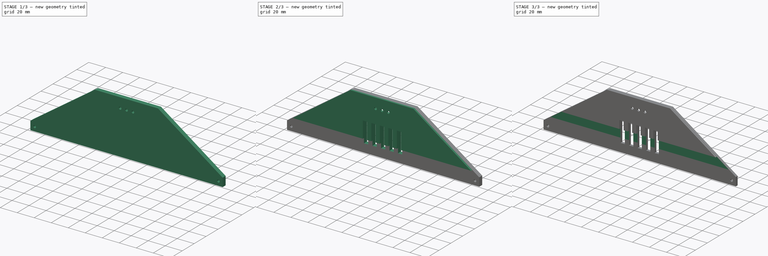
[diagram: build sequence overview — one tinted view per stage of 3, left to right]
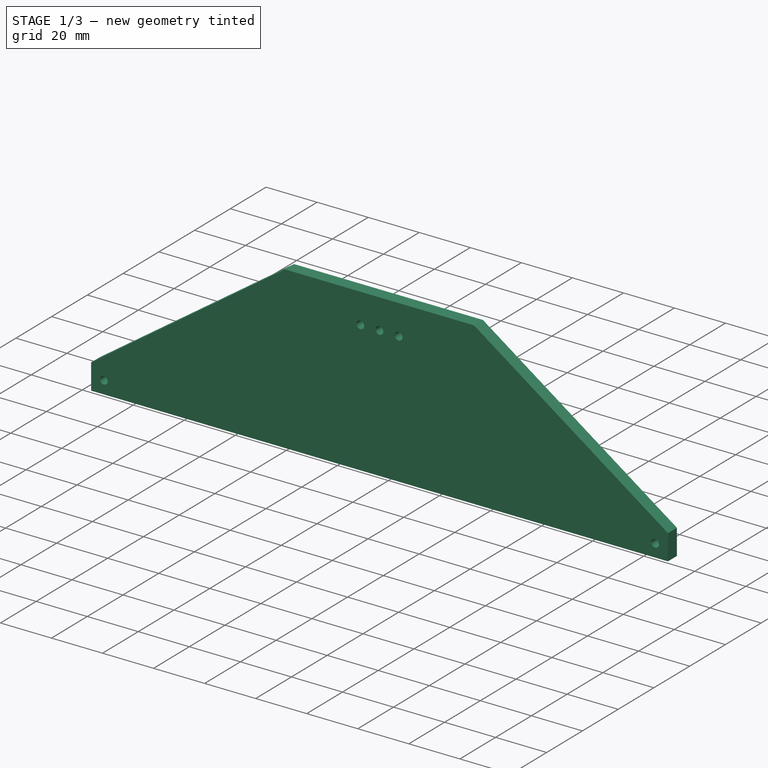
[diagram: stage 1 of 3 — iso view after this stage's code; geometry added in this stage tinted green]
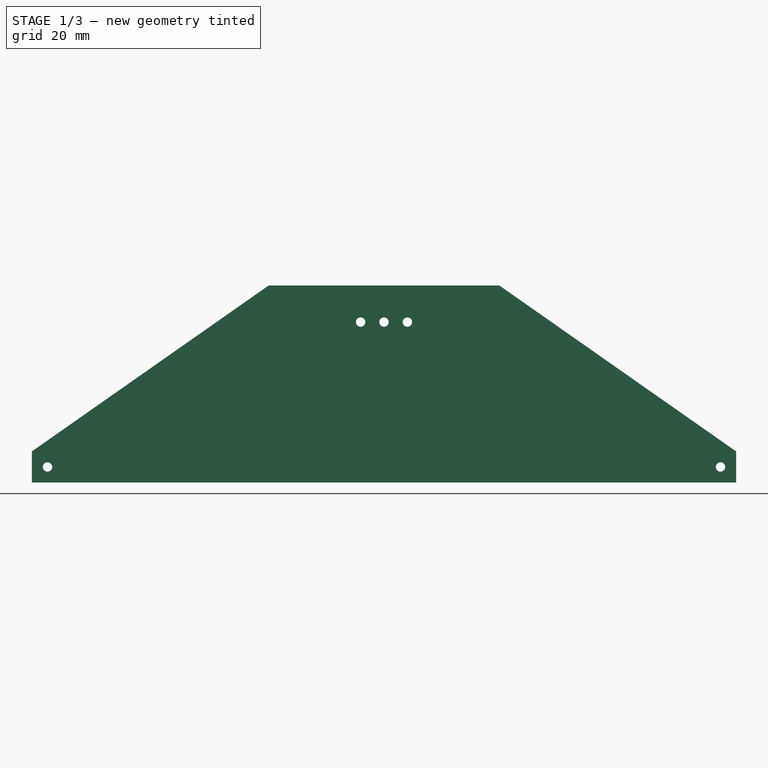
[diagram: stage 1 of 3 — front view after this stage's code; geometry added in this stage tinted green]
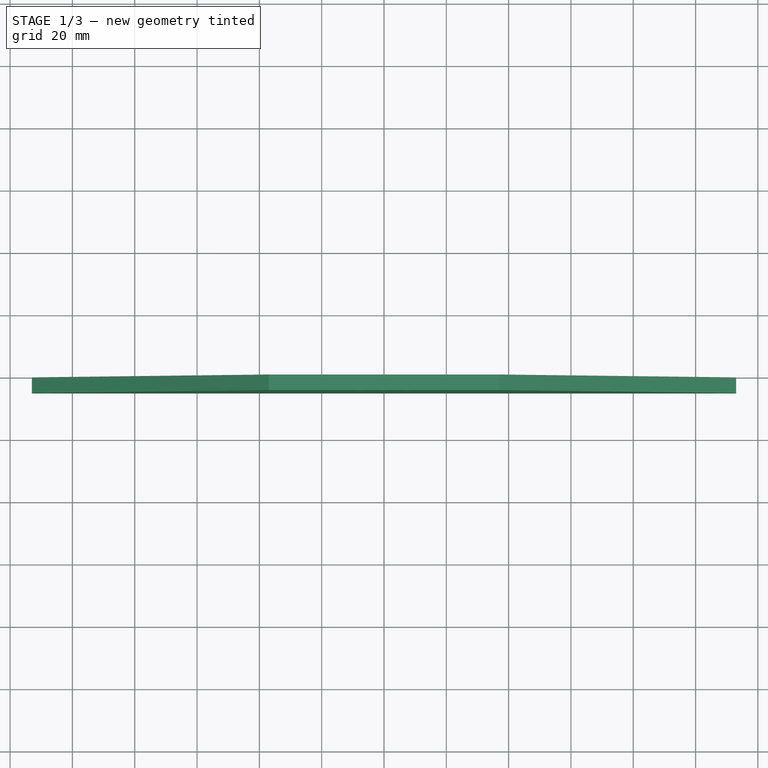
[diagram: stage 1 of 3 — top view after this stage's code; geometry added in this stage tinted green]
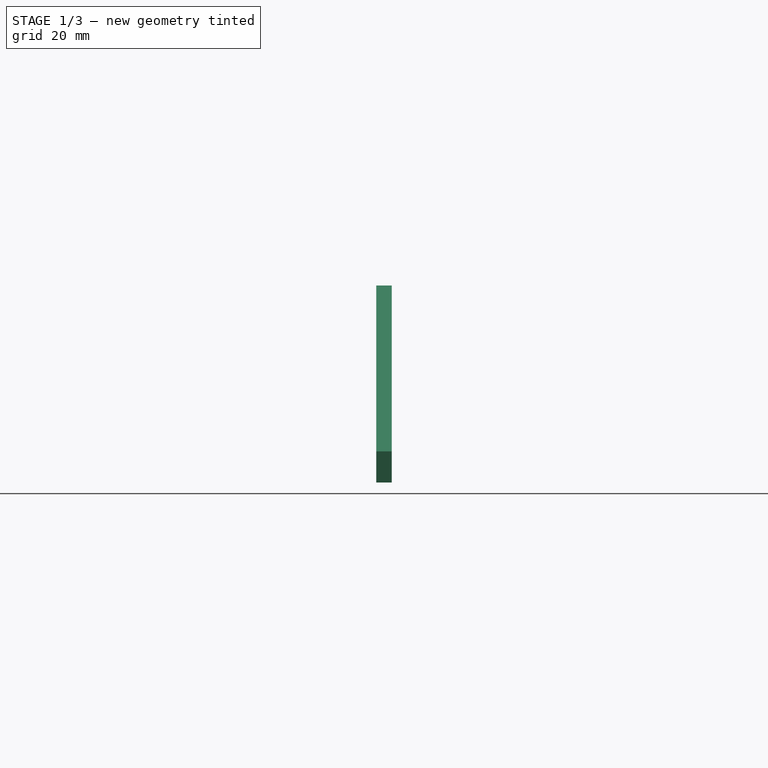
[diagram: stage 1 of 3 — right view after this stage's code; geometry added in this stage tinted green]
FCSTD DOCUMENT  (FreeCAD 0.21R33668 +26 (Git))
Label: lock_front
License: All rights reserved
LicenseURL: https://en.wikipedia.org/wiki/All_rights_reserved
objects: Sketcher::SketchObject×7, PartDesign::Pocket×5, PartDesign::Pad×2, PartDesign::Body×1
note: 22 computed .brp shape members not serialized (recipe doc carries the construction recipe); baked Part::Feature solids carry a one-line shape summary decoded from their .brp

FEATURE [Sketcher::SketchObject] Sketch
  FullyConstrained = true
  MapMode = 5
  Placement = pos=(0,0,0) rot=(1,0,0;1.5708rad)
  Support = -> [XZ_Plane]
  sketch-geometry (6):
    g0: LineSegment StartX=-37 StartY=63.25 StartZ=0 EndX=37 EndY=63.25 EndZ=0
    g1: LineSegment StartX=37 StartY=63.25 StartZ=0 EndX=113 EndY=10 EndZ=0
    g2: LineSegment StartX=113 StartY=10 StartZ=0 EndX=113 EndY=0 EndZ=0
    g3: LineSegment StartX=113 StartY=0 StartZ=0 EndX=-113 EndY=0 EndZ=0
    g4: LineSegment StartX=-113 StartY=0 StartZ=0 EndX=-113 EndY=10 EndZ=0
    g5: LineSegment StartX=-113 StartY=10 StartZ=0 EndX=-37 EndY=63.25 EndZ=0
  constraints (18):
    c: Horizontal(g0)
    c: Coincident(g0,g1)
    c: Coincident(g1,g2)
    c: PointOnObject(g2,g-1)
    c: Vertical(g2)
    c: Coincident(g2,g3)
    c: Coincident(g3,g4)
    c: Vertical(g4)
    c: Coincident(g4,g5)
    c: Coincident(g5,g0)
    c: DistanceX(g0,g0) = 74
    c: DistanceX(g-1,g0) = 37
    c: DistanceY(g2,g2) = 10
    c: DistanceY(g4,g4) = 10
    c: Horizontal(g3,g-1)
    c: DistanceX(g3,g3) = 226
    c: DistanceX(g-1,g2) = 113
    c: DistanceY(g-1,g0) = 63.25
FEATURE [PartDesign::Pad] Pad
  Direction = (0,-1,-2e-16)
  Length = 5
  Length2 = 10
  Placement = pos=(0,0,0) rot=(1,0,0;1.5708rad)
  Profile = -> Sketch
  ReferenceAxis = -> Sketch [N_Axis]
  Type = 0
FEATURE [Sketcher::SketchObject] Sketch001
  ExternalGeometry = -> [Pad]
  FullyConstrained = true
  MapMode = 5
  Placement = pos=(0,-5,-1.1e-15) rot=(1,0,0;1.5708rad)
  Support = -> [Pad]
  sketch-geometry (5):
    g0: Circle CenterX=-108 CenterY=5 CenterZ=0 NormalX=0 NormalY=0 NormalZ=1 AngleXU=0 Radius=1.5
    g1: Circle CenterX=108 CenterY=5 CenterZ=0 NormalX=0 NormalY=0 NormalZ=1 AngleXU=0 Radius=1.5
    g2: Circle CenterX=-7.5 CenterY=51.5 CenterZ=0 NormalX=0 NormalY=0 NormalZ=1 AngleXU=0 Radius=1.5
    g3: Circle CenterX=0 CenterY=51.5 CenterZ=0 NormalX=0 NormalY=0 NormalZ=1 AngleXU=0 Radius=1.5
    g4: Circle CenterX=7.5 CenterY=51.5 CenterZ=0 NormalX=0 NormalY=0 NormalZ=1 AngleXU=0 Radius=1.5
  constraints (15):
    c: Horizontal(g0,g1)
    c: Equal(g0,g1)
    c: Diameter(g1) = 3
    c: DistanceX(g1,g-4) = 5
    c: DistanceY(g1,g-4) = 5
    c: DistanceX(g-3,g0) = 5
    c: PointOnObject(g3,g-2)
    c: Horizontal(g2,g3)
    c: Horizontal(g3,g4)
    c: Equal(g2,g3)
    c: Equal(g3,g4)
    c: DistanceY(g4,g-5) = 11.75
    c: DistanceX(g3,g4) = 7.5
    c: Diameter(g4) = 3
    c: DistanceX(g2,g3) = 7.5
FEATURE [PartDesign::Pocket] Pocket
  BaseFeature = -> Pad
  Direction = (0,1,2e-16)
  Length = 5
  Length2 = 5
  Placement = pos=(0,0,0) rot=(1,0,0;1.5708rad)
  Profile = -> Sketch001
  ReferenceAxis = -> Sketch001 [N_Axis]
  Type = 1
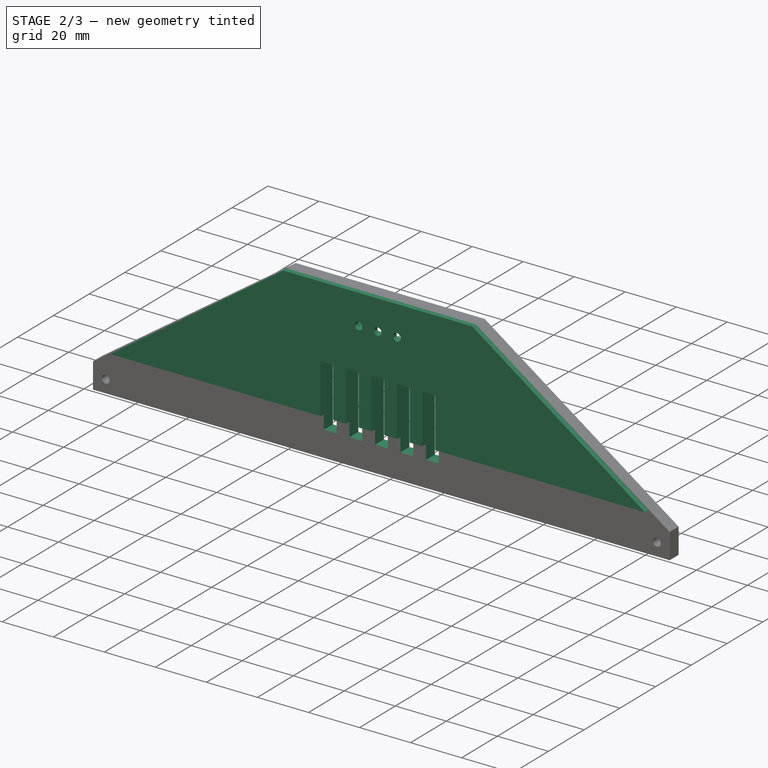
[diagram: stage 2 of 3 — iso view after this stage's code; geometry added in this stage tinted green]
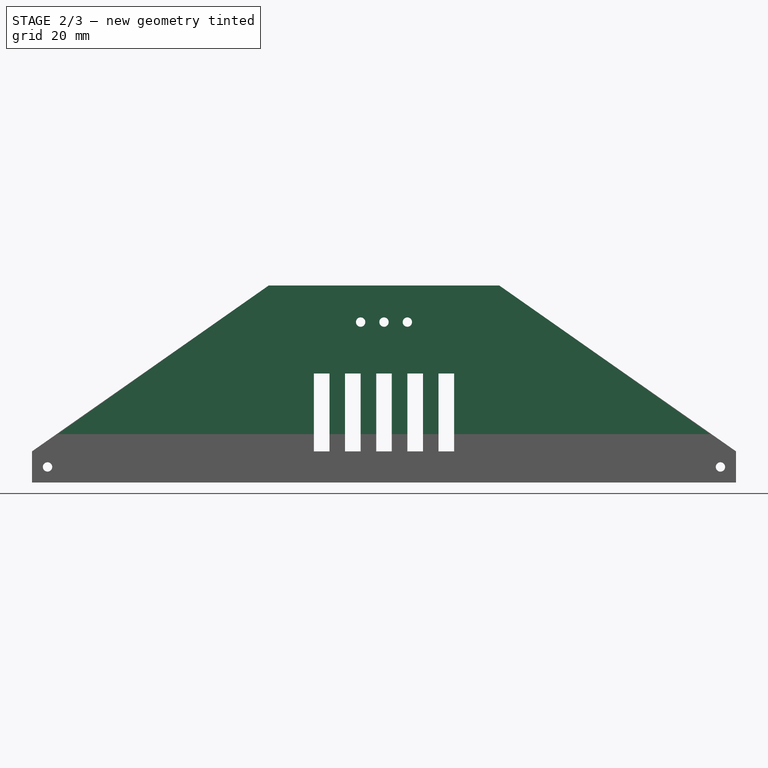
[diagram: stage 2 of 3 — front view after this stage's code; geometry added in this stage tinted green]
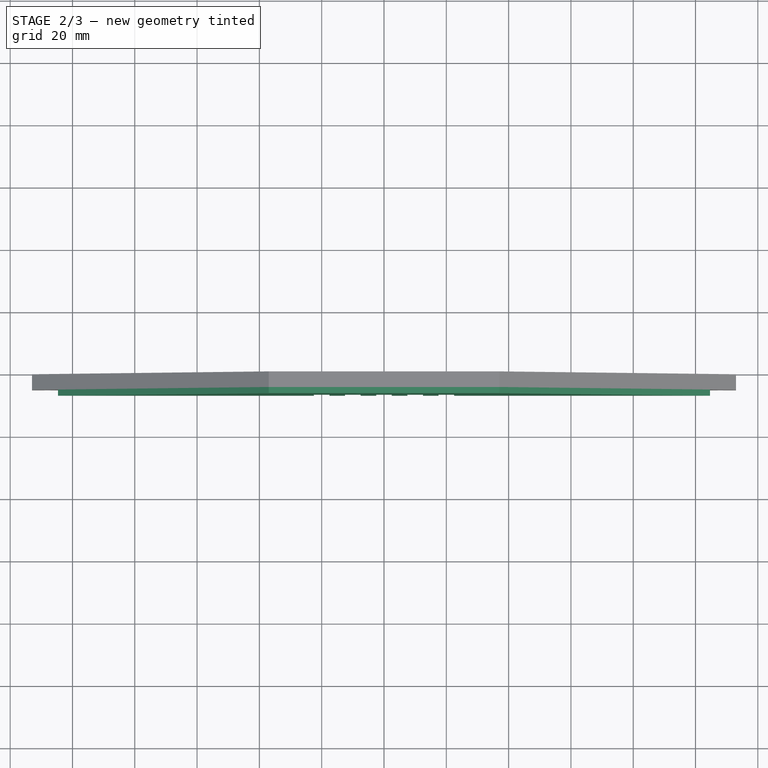
[diagram: stage 2 of 3 — top view after this stage's code; geometry added in this stage tinted green]
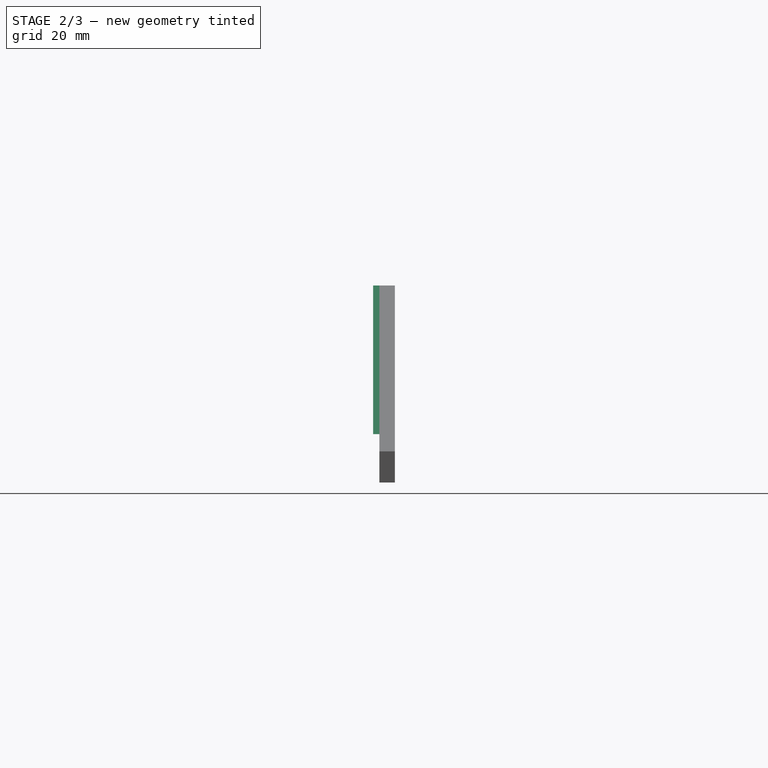
[diagram: stage 2 of 3 — right view after this stage's code; geometry added in this stage tinted green]
FEATURE [Sketcher::SketchObject] Sketch002
  ExternalGeometry = -> [Pocket]
  FullyConstrained = false
  MapMode = 5
  Placement = pos=(0,-5,-1.1e-15) rot=(1,0,0;1.5708rad)
  Support = -> [Pocket]
  sketch-geometry (7):
    g0: LineSegment StartX=-37 StartY=63.25 StartZ=0 EndX=37 EndY=63.25 EndZ=0
    g1: LineSegment StartX=104.656 StartY=15.55 StartZ=0 EndX=-104.656 EndY=15.55 EndZ=0
    g2: LineSegment StartX=-37 StartY=63.25 StartZ=0 EndX=-104.656 EndY=15.55 EndZ=0
    g3: LineSegment StartX=37 StartY=63.25 StartZ=0 EndX=104.656 EndY=15.55 EndZ=0
    g4: Circle CenterX=-7.5 CenterY=51.5 CenterZ=0 NormalX=0 NormalY=0 NormalZ=1 AngleXU=0 Radius=1.5
    g5: Circle CenterX=0 CenterY=51.5 CenterZ=0 NormalX=0 NormalY=0 NormalZ=1 AngleXU=0 Radius=1.5
    g6: Circle CenterX=7.5 CenterY=51.5 CenterZ=0 NormalX=0 NormalY=0 NormalZ=1 AngleXU=0 Radius=1.5
  constraints (14):
    c: Horizontal(g0)
    c: Horizontal(g1)
    c: Coincident(g2,g-3)
    c: Coincident(g3,g-3)
    c: PointOnObject(g0,g-3)
    c: Coincident(g2,g1)
    c: PointOnObject(g0,g3)
    c: Coincident(g3,g1)
    c: Coincident(g4,g-6)
    c: Coincident(g5,g-7)
    c: Coincident(g6,g-8)
    c: Equal(g-8,g6)
    c: Equal(g5,g-7)
    c: Equal(g4,g-6)
FEATURE [PartDesign::Pad] Pad001
  BaseFeature = -> Pocket
  Direction = (0,-1,-2e-16)
  Length = 2
  Length2 = 10
  Placement = pos=(0,0,0) rot=(1,0,0;1.5708rad)
  Profile = -> Sketch002
  ReferenceAxis = -> Sketch002 [N_Axis]
  Type = 0
FEATURE [Sketcher::SketchObject] Sketch003
  FullyConstrained = false
  MapMode = 5
  Placement = pos=(0,0,0) rot=(-1,0,0;1.5708rad)
  Support = -> [Pad001]
  sketch-geometry (4):
    g0: ArcOfCircle CenterX=-7.5 CenterY=-51.5 CenterZ=0 NormalX=0 NormalY=0 NormalZ=1 AngleXU=0 Radius=3.70195 StartAngle=1.5708 EndAngle=4.71239
    g1: ArcOfCircle CenterX=7.5 CenterY=-51.5 CenterZ=0 NormalX=0 NormalY=0 NormalZ=1 AngleXU=0 Radius=3.70195 StartAngle=4.71239 EndAngle=7.85398
    g2: LineSegment StartX=-7.5 StartY=-55.202 StartZ=0 EndX=7.5 EndY=-55.202 EndZ=0
    g3: LineSegment StartX=7.5 StartY=-47.798 StartZ=0 EndX=-7.5 EndY=-47.798 EndZ=0
  constraints (6):
    c: Tangent(g0,g2) = -1.5708
    c: Tangent(g2,g1) = -1.5708
    c: Tangent(g1,g3) = -1.5708
    c: Tangent(g3,g0) = -1.5708
    c: Equal(g0,g1)
    c: Horizontal(g2)
FEATURE [PartDesign::Pocket] Pocket001
  BaseFeature = -> Pad001
  Direction = (0,-1,-2e-16)
  Length = 5
  Length2 = 5
  Placement = pos=(0,0,0) rot=(1,0,0;1.5708rad)
  Profile = -> Sketch003
  ReferenceAxis = -> Sketch003 [N_Axis]
  Type = 0
FEATURE [Sketcher::SketchObject] Sketch004
  FullyConstrained = true
  MapMode = 5
  Placement = pos=(0,0,0) rot=(-1,0,0;1.5708rad)
  Support = -> [Pocket001]
  sketch-geometry (20):
    g0: LineSegment StartX=-22.5 StartY=-10 StartZ=0 EndX=-17.5 EndY=-10 EndZ=0
    g1: LineSegment StartX=-17.5 StartY=-10 StartZ=0 EndX=-17.5 EndY=-35 EndZ=0
    g2: LineSegment StartX=-17.5 StartY=-35 StartZ=0 EndX=-22.5 EndY=-35 EndZ=0
    g3: LineSegment StartX=-22.5 StartY=-35 StartZ=0 EndX=-22.5 EndY=-10 EndZ=0
    g4: LineSegment StartX=-2.5 StartY=-10 StartZ=0 EndX=2.5 EndY=-10 EndZ=0
    g5: LineSegment StartX=2.5 StartY=-10 StartZ=0 EndX=2.5 EndY=-35 EndZ=0
    g6: LineSegment StartX=2.5 StartY=-35 StartZ=0 EndX=-2.5 EndY=-35 EndZ=0
    g7: LineSegment StartX=-2.5 StartY=-35 StartZ=0 EndX=-2.5 EndY=-10 EndZ=0
    g8: LineSegment StartX=7.5 StartY=-10 StartZ=0 EndX=12.5 EndY=-10 EndZ=0
    g9: LineSegment StartX=12.5 StartY=-10 StartZ=0 EndX=12.5 EndY=-35 EndZ=0
    g10: LineSegment StartX=12.5 StartY=-35 StartZ=0 EndX=7.5 EndY=-35 EndZ=0
    g11: LineSegment StartX=7.5 StartY=-35 StartZ=0 EndX=7.5 EndY=-10 EndZ=0
    g12: LineSegment StartX=17.5 StartY=-10 StartZ=0 EndX=22.5 EndY=-10 EndZ=0
    g13: LineSegment StartX=22.5 StartY=-10 StartZ=0 EndX=22.5 EndY=-35 EndZ=0
    g14: LineSegment StartX=22.5 StartY=-35 StartZ=0 EndX=17.5 EndY=-35 EndZ=0
    g15: LineSegment StartX=17.5 StartY=-35 StartZ=0 EndX=17.5 EndY=-10 EndZ=0
    g16: LineSegment StartX=-12.5 StartY=-10 StartZ=0 EndX=-7.5 EndY=-10 EndZ=0
    g17: LineSegment StartX=-7.5 StartY=-10 StartZ=0 EndX=-7.5 EndY=-35 EndZ=0
    g18: LineSegment StartX=-7.5 StartY=-35 StartZ=0 EndX=-12.5 EndY=-35 EndZ=0
    g19: LineSegment StartX=-12.5 StartY=-35 StartZ=0 EndX=-12.5 EndY=-10 EndZ=0
  constraints (60):
    c: Coincident(g0,g1)
    c: Coincident(g1,g2)
    c: Coincident(g2,g3)
    c: Coincident(g3,g0)
    c: Horizontal(g0)
    c: Horizontal(g2)
    c: Vertical(g1)
    c: Vertical(g3)
    c: DistanceY(g0,g-1) = 10
    c: DistanceY(g1,g1) = 25
    c: DistanceX(g0,g0) = 5
    c: Coincident(g4,g5)
    c: Coincident(g5,g6)
    c: Coincident(g6,g7)
    c: Coincident(g7,g4)
    c: Horizontal(g4)
    c: Horizontal(g6)
    c: Vertical(g5)
    c: Vertical(g7)
    c: Coincident(g8,g9)
    c: Coincident(g9,g10)
    c: Coincident(g10,g11)
    c: Coincident(g11,g8)
    c: Horizontal(g8)
    c: Horizontal(g10)
    c: Vertical(g9)
    c: Vertical(g11)
    c: Coincident(g12,g13)
    c: Coincident(g13,g14)
    c: Coincident(g14,g15)
    c: Coincident(g15,g12)
    c: Horizontal(g12)
    c: Horizontal(g14)
    c: Vertical(g13)
    c: Vertical(g15)
    c: Horizontal(g4,g8)
    c: Horizontal(g8,g12)
    c: Horizontal(g14,g9)
    c: Horizontal(g10,g5)
    c: Equal(g4,g0)
    c: Equal(g4,g8)
    c: Equal(g8,g12)
    c: DistanceX(g4,g8) = 5
    c: DistanceX(g8,g12) = 5
    c: DistanceX(g4,g-1) = 2.5
    c: Coincident(g16,g17)
    c: Coincident(g17,g18)
    c: Coincident(g18,g19)
    c: Coincident(g19,g16)
    c: Horizontal(g16)
    c: Horizontal(g18)
    c: Vertical(g17)
    c: Vertical(g19)
    c: DistanceX(g16,g4) = 5
    c: DistanceX(g0,g16) = 5
    c: DistanceX(g16,g16) = 5
    c: Horizontal(g16,g4)
    c: Horizontal(g16,g0)
    c: Horizontal(g1,g18)
    c: Horizontal(g18,g6)
FEATURE [PartDesign::Pocket] Pocket002
  BaseFeature = -> Pocket001
  Direction = (0,-1,-2e-16)
  Length = 5
  Length2 = 5
  Placement = pos=(0,0,0) rot=(1,0,0;1.5708rad)
  Profile = -> Sketch004
  ReferenceAxis = -> Sketch004 [N_Axis]
  Type = 1
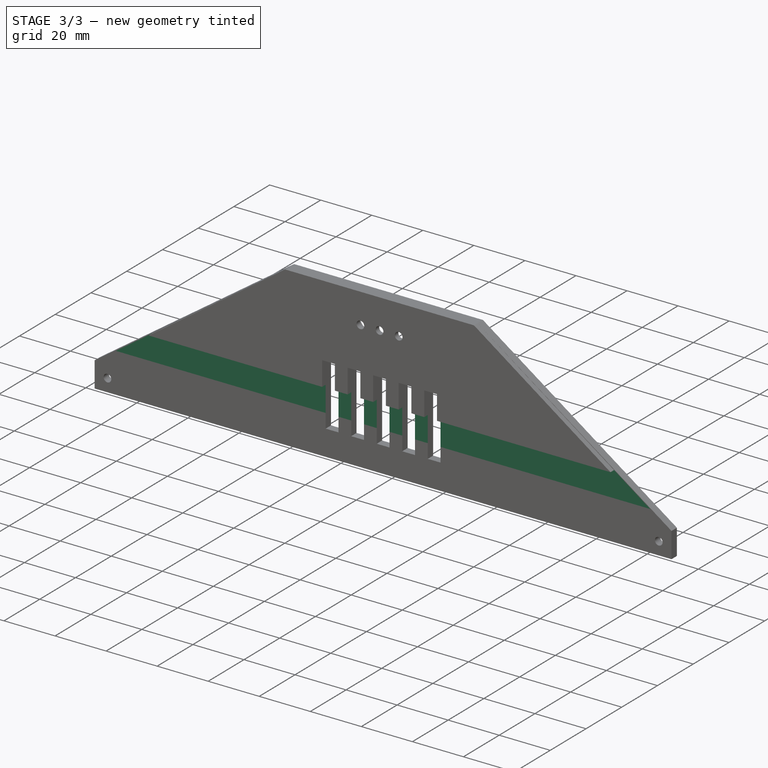
[diagram: stage 3 of 3 — iso view after this stage's code; geometry added in this stage tinted green]
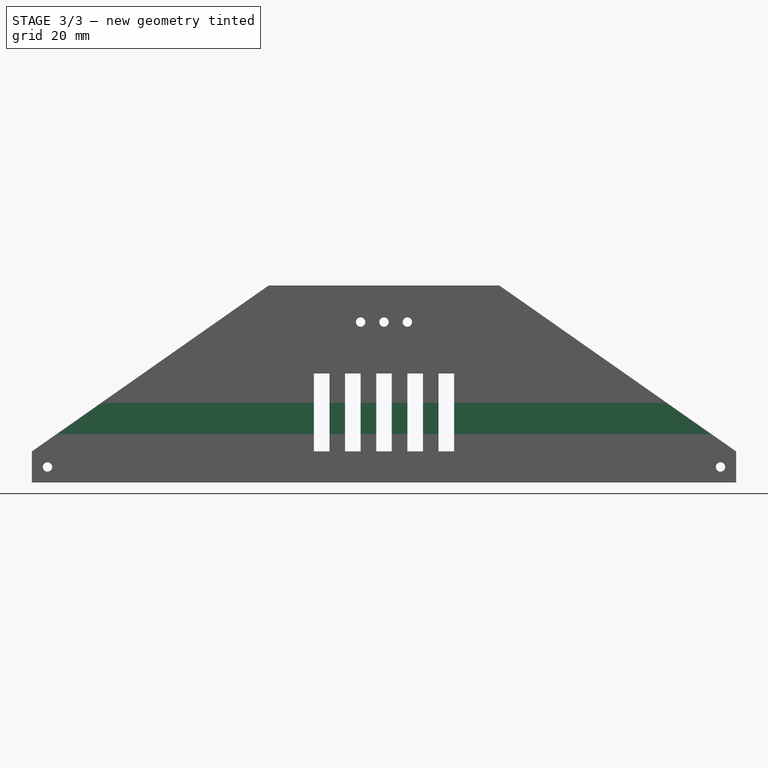
[diagram: stage 3 of 3 — front view after this stage's code; geometry added in this stage tinted green]
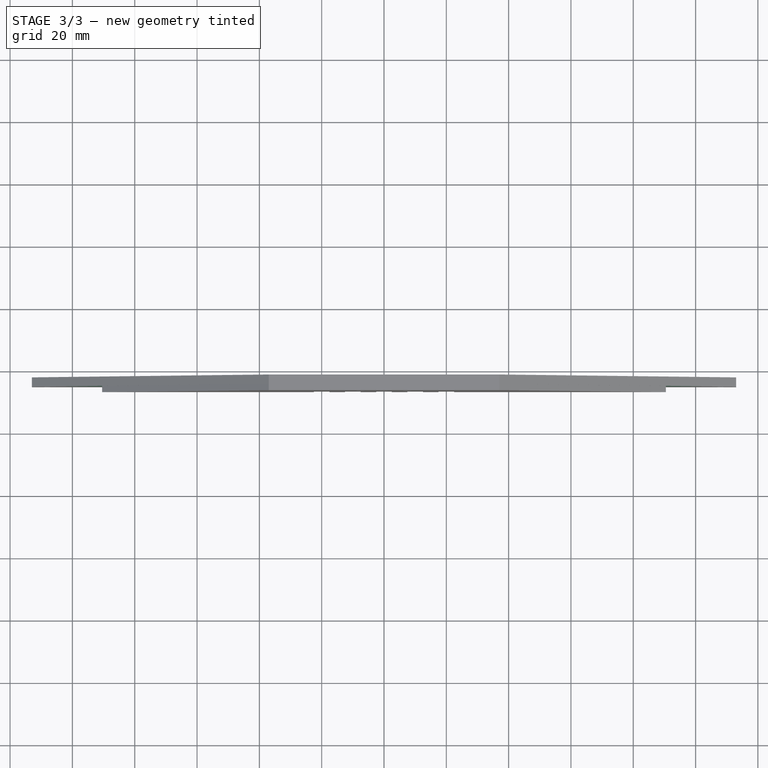
[diagram: stage 3 of 3 — top view after this stage's code; geometry added in this stage tinted green]
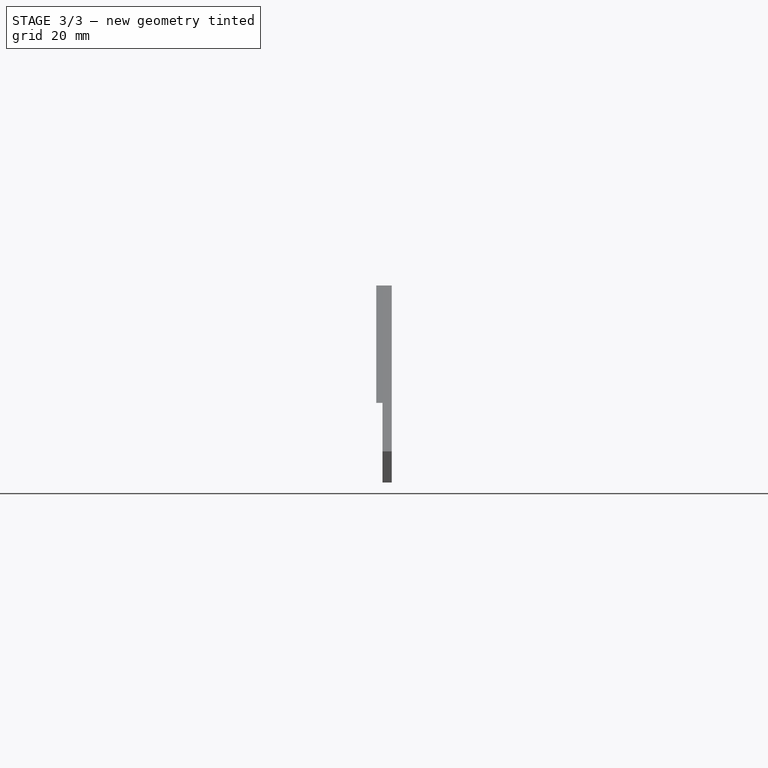
[diagram: stage 3 of 3 — right view after this stage's code; geometry added in this stage tinted green]
FEATURE [Sketcher::SketchObject] Sketch005
  ExternalGeometry = -> [Pocket002]
  FullyConstrained = false
  MapMode = 5
  Placement = pos=(0,-7,-1.6e-15) rot=(1,0,0;1.5708rad)
  Support = -> [Pocket002]
  sketch-geometry (4):
    g0: LineSegment StartX=-121.433 StartY=25.55 StartZ=0 EndX=121.653 EndY=25.55 EndZ=0
    g1: LineSegment StartX=121.653 StartY=25.55 StartZ=0 EndX=121.653 EndY=-6.96702 EndZ=0
    g2: LineSegment StartX=121.653 StartY=-6.96702 StartZ=0 EndX=-121.433 EndY=-6.96702 EndZ=0
    g3: LineSegment StartX=-121.433 StartY=-6.96702 StartZ=0 EndX=-121.433 EndY=25.55 EndZ=0
  constraints (9):
    c: Coincident(g0,g1)
    c: Coincident(g1,g2)
    c: Coincident(g2,g3)
    c: Coincident(g3,g0)
    c: Horizontal(g0)
    c: Horizontal(g2)
    c: Vertical(g1)
    c: Vertical(g3)
    c: DistanceY(g-3,g0) = 10
FEATURE [PartDesign::Pocket] Pocket003
  BaseFeature = -> Pocket002
  Direction = (0,1,2e-16)
  Length = 0
  Length2 = 5
  Placement = pos=(0,0,0) rot=(1,0,0;1.5708rad)
  Profile = -> Sketch005
  ReferenceAxis = -> Sketch005 [N_Axis]
  Type = 3
  UpToFace = -> Pocket002 [Face7]
FEATURE [Sketcher::SketchObject] Sketch006
  FullyConstrained = false
  MapMode = 5
  Placement = pos=(0,0,0) rot=(-1,0,0;1.5708rad)
  Support = -> [Pocket003]
  sketch-geometry (4):
    g0: LineSegment StartX=-134.283 StartY=41.0827 StartZ=0 EndX=189.868 EndY=41.0827 EndZ=0
    g1: LineSegment StartX=189.868 StartY=41.0827 StartZ=0 EndX=189.868 EndY=-136.87 EndZ=0
    g2: LineSegment StartX=189.868 StartY=-136.87 StartZ=0 EndX=-134.283 EndY=-136.87 EndZ=0
    g3: LineSegment StartX=-134.283 StartY=-136.87 StartZ=0 EndX=-134.283 EndY=41.0827 EndZ=0
  constraints (8):
    c: Coincident(g0,g1)
    c: Coincident(g1,g2)
    c: Coincident(g2,g3)
    c: Coincident(g3,g0)
    c: Horizontal(g0)
    c: Horizontal(g2)
    c: Vertical(g1)
    c: Vertical(g3)
FEATURE [PartDesign::Pocket] Pocket004
  BaseFeature = -> Pocket003
  Direction = (0,-1,-2e-16)
  Length = 2
  Length2 = 5
  Placement = pos=(0,0,0) rot=(1,0,0;1.5708rad)
  Profile = -> Sketch006
  ReferenceAxis = -> Sketch006 [N_Axis]
  Type = 0
FEATURE [PartDesign::Body] Body
  Group = -> [Sketch,Pad,Sketch001,Pocket,Sketch002,Pad001,Sketch003,Pocket001,Sketch004,Pocket002,Sketch005,Pocket003,Sketch006,Pocket004]
  Origin = -> Origin
  Tip = -> Pocket004
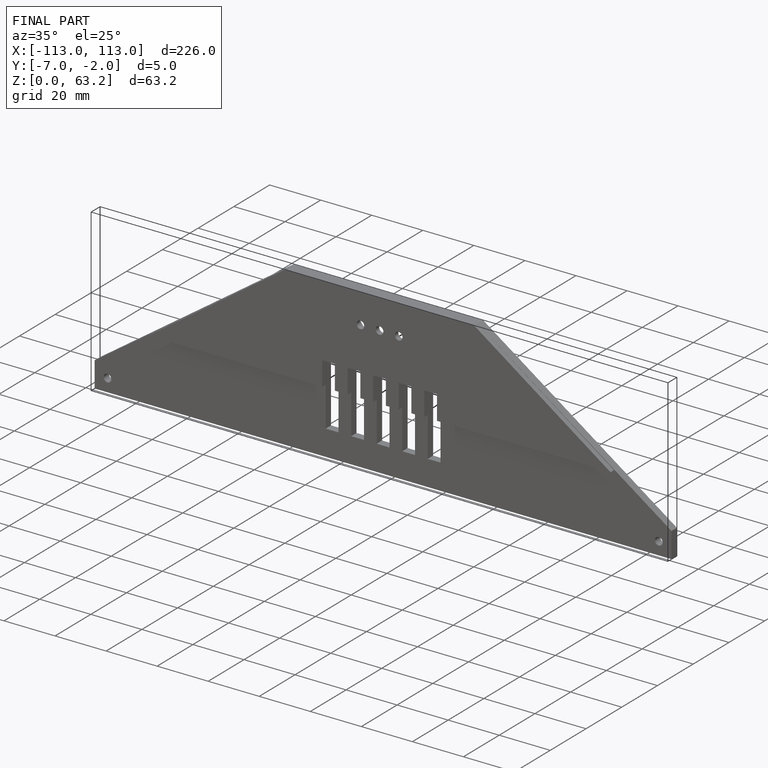
[diagram: finished part — iso view with bounding-box wireframe]
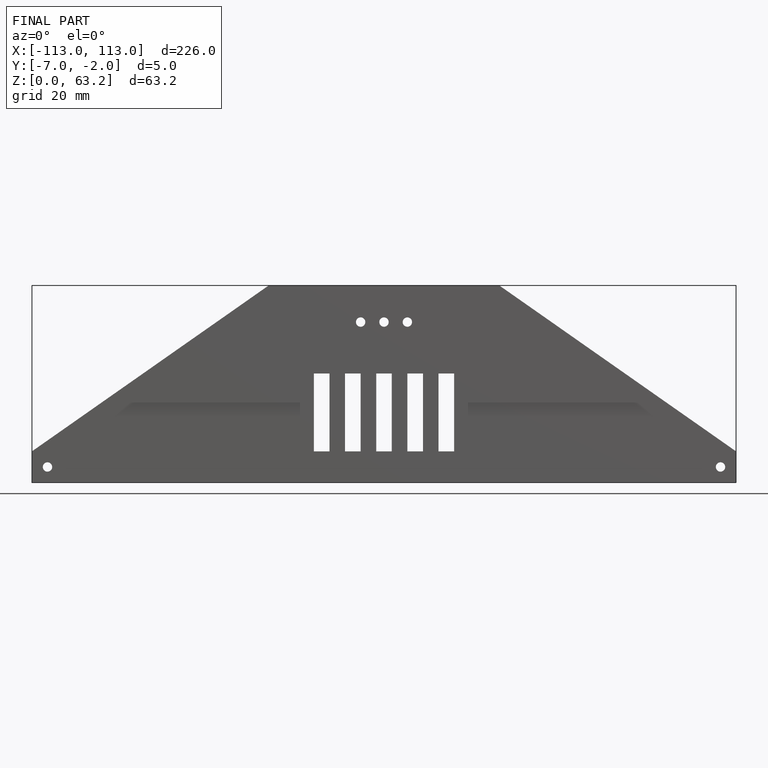
[diagram: finished part — front view with bounding-box wireframe]
